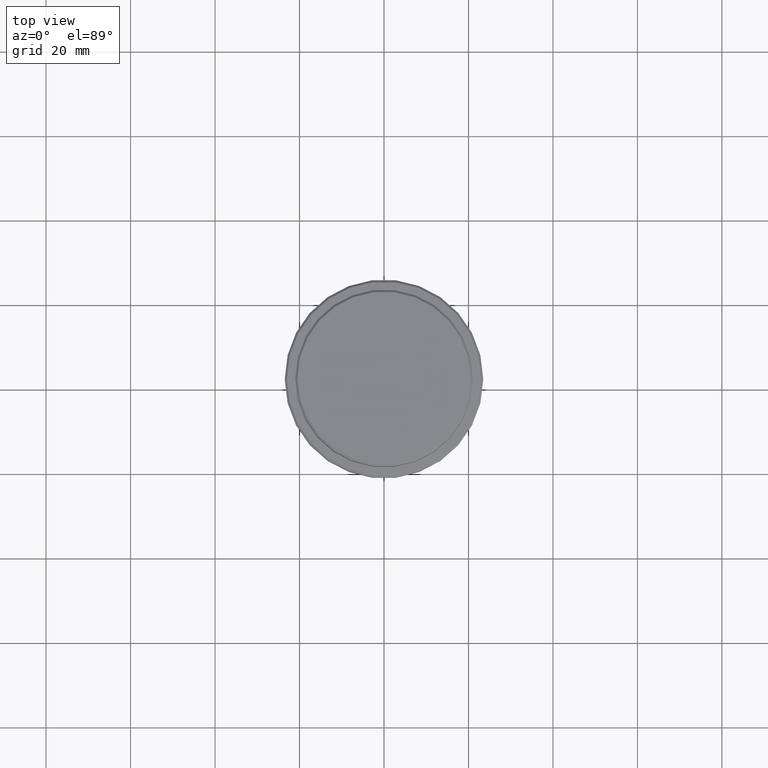
[diagram: clean part render]
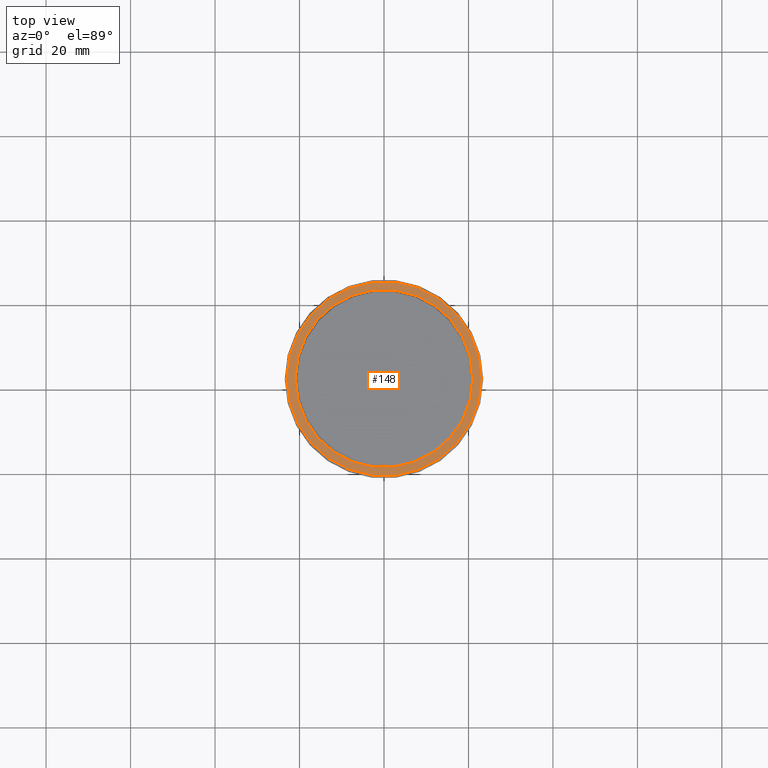
[diagram: same view with one face highlighted and labeled with its STEP entity id]
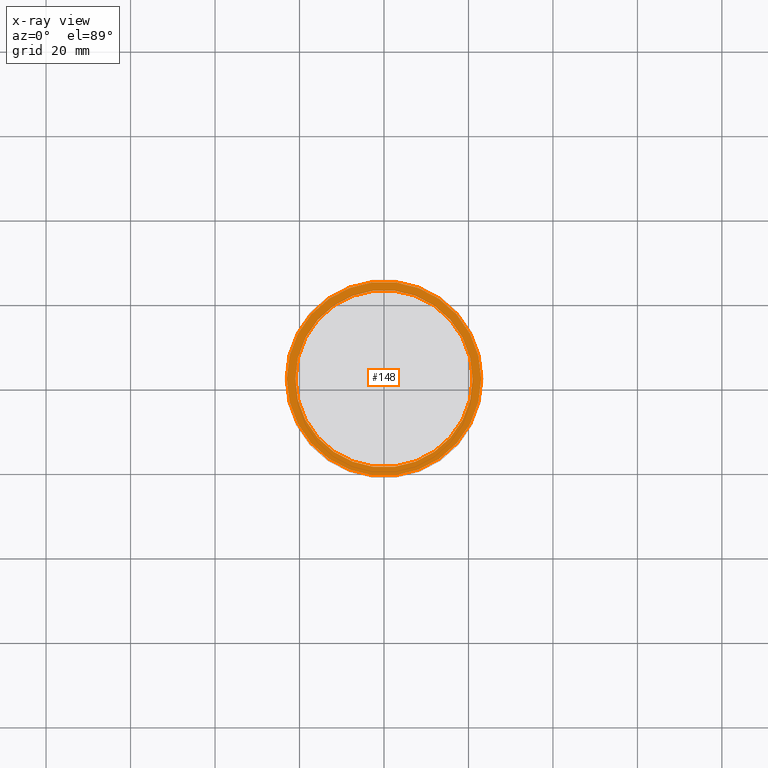
[diagram: x-ray of the same camera — body ghosted, the highlighted face saturated]
A machine part, top view. The second image highlights one B-rep face of the part: STEP entity #148.
The next image is the same camera in x-ray: the body ghosted, the highlighted face saturated — about 0% of this face is hidden behind the body in this view.
In plain terms, the highlighted planar face has unit normal (0, -0, 1).
Its self-contained STEP definition (entity closure, byte-faithful):
#55 = EDGE_CURVE ( 'NONE', #490, #285, #1073, .T. ) ;
#65 = CIRCLE ( 'NONE', #793, 22.99999999999999645 ) ;
#72 = EDGE_CURVE ( 'NONE', #737, #916, #725, .T. ) ;
#102 = DIRECTION ( 'NONE',  ( 0.000000000000000000, -0.000000000000000000, 1.000000000000000000 ) ) ;
#148 = ADVANCED_FACE ( 'NONE', ( #298, #635 ), #522, .T. ) ;
#165 = ORIENTED_EDGE ( 'NONE', *, *, #822, .T. ) ;
#182 = DIRECTION ( 'NONE',  ( 1.000000000000000000, 0.000000000000000000, 0.000000000000000000 ) ) ;
#213 = CIRCLE ( 'NONE', #723, 20.99999999999999289 ) ;
#243 = CARTESIAN_POINT ( 'NONE',  ( 20.99999999999999289, 0.000000000000000000, -9.000000000000000000 ) ) ;
#275 = CARTESIAN_POINT ( 'NONE',  ( 0.000000000000000000, 0.000000000000000000, -9.000000000000000000 ) ) ;
#285 = VERTEX_POINT ( 'NONE', #1339 ) ;
#295 = CARTESIAN_POINT ( 'NONE',  ( 0.000000000000000000, 0.000000000000000000, -9.000000000000000000 ) ) ;
#298 = FACE_OUTER_BOUND ( 'NONE', #1391, .T. ) ;
#306 = ORIENTED_EDGE ( 'NONE', *, *, #557, .T. ) ;
#312 = ORIENTED_EDGE ( 'NONE', *, *, #72, .T. ) ;
#394 = DIRECTION ( 'NONE',  ( -0.000000000000000000, -0.000000000000000000, 1.000000000000000000 ) ) ;
#490 = VERTEX_POINT ( 'NONE', #805 ) ;
#517 = CARTESIAN_POINT ( 'NONE',  ( -20.99999999999999289, 2.571758278209440872E-15, -9.000000000000000000 ) ) ;
#522 = PLANE ( 'NONE',  #1004 ) ;
#557 = EDGE_CURVE ( 'NONE', #916, #737, #213, .T. ) ;
#595 = AXIS2_PLACEMENT_3D ( 'NONE', #1377, #830, #182 ) ;
#622 = CARTESIAN_POINT ( 'NONE',  ( 0.000000000000000000, 20.49999999999999645, -9.000000000000000000 ) ) ;
#624 = ORIENTED_EDGE ( 'NONE', *, *, #55, .T. ) ;
#635 = FACE_BOUND ( 'NONE', #1063, .T. ) ;
#723 = AXIS2_PLACEMENT_3D ( 'NONE', #275, #917, #1253 ) ;
#725 = CIRCLE ( 'NONE', #595, 20.99999999999999289 ) ;
#737 = VERTEX_POINT ( 'NONE', #517 ) ;
#793 = AXIS2_PLACEMENT_3D ( 'NONE', #295, #1158, #1276 ) ;
#805 = CARTESIAN_POINT ( 'NONE',  ( 22.99999999999999645, 2.847303808017596139E-15, -9.000000000000000000 ) ) ;
#822 = EDGE_CURVE ( 'NONE', #285, #490, #65, .T. ) ;
#823 = DIRECTION ( 'NONE',  ( 1.000000000000000000, 0.000000000000000000, 0.000000000000000000 ) ) ;
#830 = DIRECTION ( 'NONE',  ( 0.000000000000000000, 0.000000000000000000, -1.000000000000000000 ) ) ;
#916 = VERTEX_POINT ( 'NONE', #243 ) ;
#917 = DIRECTION ( 'NONE',  ( 0.000000000000000000, 0.000000000000000000, -1.000000000000000000 ) ) ;
#1004 = AXIS2_PLACEMENT_3D ( 'NONE', #622, #102, #1058 ) ;
#1058 = DIRECTION ( 'NONE',  ( 1.000000000000000000, 0.000000000000000000, 0.000000000000000000 ) ) ;
#1063 = EDGE_LOOP ( 'NONE', ( #306, #312 ) ) ;
#1073 = CIRCLE ( 'NONE', #1350, 22.99999999999999645 ) ;
#1158 = DIRECTION ( 'NONE',  ( -0.000000000000000000, -0.000000000000000000, 1.000000000000000000 ) ) ;
#1253 = DIRECTION ( 'NONE',  ( 1.000000000000000000, 0.000000000000000000, 0.000000000000000000 ) ) ;
#1276 = DIRECTION ( 'NONE',  ( 1.000000000000000000, 0.000000000000000000, 0.000000000000000000 ) ) ;
#1339 = CARTESIAN_POINT ( 'NONE',  ( -22.99999999999999645, 0.000000000000000000, -9.000000000000000000 ) ) ;
#1350 = AXIS2_PLACEMENT_3D ( 'NONE', #1367, #394, #823 ) ;
#1367 = CARTESIAN_POINT ( 'NONE',  ( 0.000000000000000000, 0.000000000000000000, -9.000000000000000000 ) ) ;
#1377 = CARTESIAN_POINT ( 'NONE',  ( 0.000000000000000000, 0.000000000000000000, -9.000000000000000000 ) ) ;
#1391 = EDGE_LOOP ( 'NONE', ( #165, #624 ) ) ;